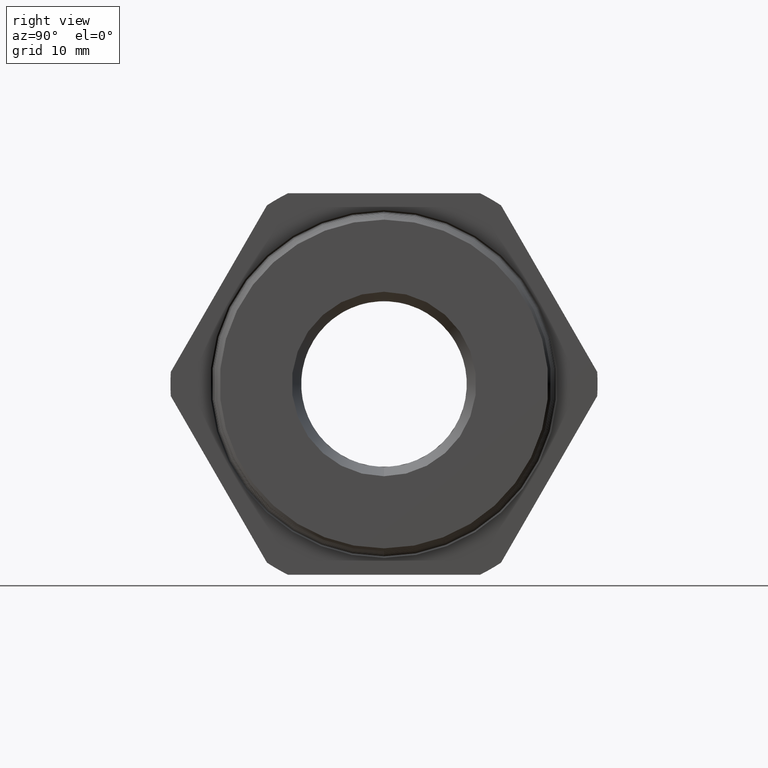
[diagram: clean part render]
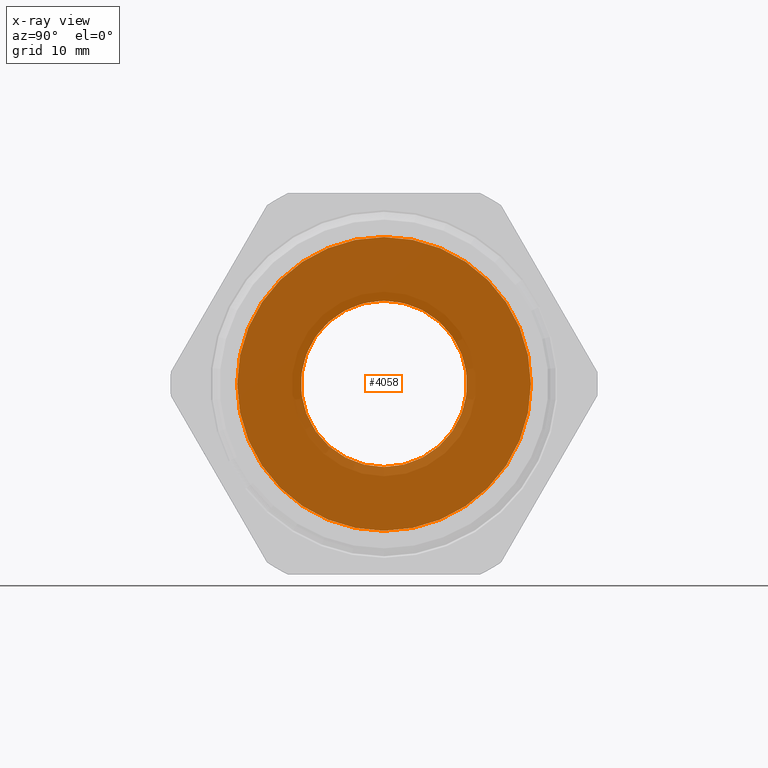
[diagram: x-ray — body ghosted, one internal face saturated and labeled with its STEP entity id]
A machine part, right view, then the same camera in x-ray: the body is ghosted and one INTERNAL B-rep face — a face not visible from any outside direction — is saturated and labeled: STEP entity #4058.
In plain terms, the highlighted planar face has unit normal (1, 0, 0).
Its self-contained STEP definition (entity closure, byte-faithful):
#327 = VERTEX_POINT ( 'NONE', #1703 ) ;
#333 = VERTEX_POINT ( 'NONE', #1758 ) ;
#335 = EDGE_CURVE ( 'NONE', #333, #327, #1757, .T. ) ;
#869 = VERTEX_POINT ( 'NONE', #2783 ) ;
#870 = VERTEX_POINT ( 'NONE', #2782 ) ;
#872 = EDGE_CURVE ( 'NONE', #870, #869, #2781, .T. ) ;
#1703 = CARTESIAN_POINT ( 'NONE',  ( -1.106250000000000200, 0.0000000000000000000, 0.3950000000000000200 ) ) ;
#1753 = DIRECTION ( 'NONE',  ( 0.0000000000000000000, 0.0000000000000000000, 1.000000000000000000 ) ) ;
#1754 = DIRECTION ( 'NONE',  ( -1.000000000000000000, 0.0000000000000000000, 0.0000000000000000000 ) ) ;
#1755 = CARTESIAN_POINT ( 'NONE',  ( -1.106250000000000200, 0.0000000000000000000, 0.0000000000000000000 ) ) ;
#1756 = AXIS2_PLACEMENT_3D ( 'NONE', #1755, #1754, #1753 ) ;
#1757 = CIRCLE ( 'NONE', #1756, 0.3950000000000000200 ) ;
#1758 = CARTESIAN_POINT ( 'NONE',  ( -1.106250000000000200, 4.837354856632045600E-017, -0.3950000000000000200 ) ) ;
#2777 = DIRECTION ( 'NONE',  ( 0.0000000000000000000, 0.0000000000000000000, 1.000000000000000000 ) ) ;
#2778 = DIRECTION ( 'NONE',  ( -1.000000000000000000, 0.0000000000000000000, 0.0000000000000000000 ) ) ;
#2779 = CARTESIAN_POINT ( 'NONE',  ( -1.106250000000000200, 0.0000000000000000000, 0.0000000000000000000 ) ) ;
#2780 = AXIS2_PLACEMENT_3D ( 'NONE', #2779, #2778, #2777 ) ;
#2781 = CIRCLE ( 'NONE', #2780, 0.6969999999999999500 ) ;
#2782 = CARTESIAN_POINT ( 'NONE',  ( -1.106250000000000200, 8.535788190057050200E-017, -0.6969999999999999500 ) ) ;
#2783 = CARTESIAN_POINT ( 'NONE',  ( -1.106250000000000200, 0.0000000000000000000, 0.6969999999999999500 ) ) ;
#3525 = DIRECTION ( 'NONE',  ( 0.0000000000000000000, 0.0000000000000000000, -1.000000000000000000 ) ) ;
#3526 = DIRECTION ( 'NONE',  ( 1.000000000000000000, 0.0000000000000000000, 0.0000000000000000000 ) ) ;
#3527 = CARTESIAN_POINT ( 'NONE',  ( -1.106250000000000200, 0.6969999999999999500, 0.0000000000000000000 ) ) ;
#3528 = AXIS2_PLACEMENT_3D ( 'NONE', #3527, #3526, #3525 ) ;
#3529 = PLANE ( 'NONE',  #3528 ) ;
#3530 = FACE_OUTER_BOUND ( 'NONE', #4036, .T. ) ;
#3531 = FACE_BOUND ( 'NONE', #4053, .T. ) ;
#3532 = DIRECTION ( 'NONE',  ( 0.0000000000000000000, 0.0000000000000000000, 1.000000000000000000 ) ) ;
#3533 = DIRECTION ( 'NONE',  ( -1.000000000000000000, 0.0000000000000000000, 0.0000000000000000000 ) ) ;
#3534 = CARTESIAN_POINT ( 'NONE',  ( -1.106250000000000200, 0.0000000000000000000, 0.0000000000000000000 ) ) ;
#3535 = AXIS2_PLACEMENT_3D ( 'NONE', #3534, #3533, #3532 ) ;
#3536 = CIRCLE ( 'NONE', #3535, 0.3950000000000000200 ) ;
#3597 = DIRECTION ( 'NONE',  ( 0.0000000000000000000, 0.0000000000000000000, 1.000000000000000000 ) ) ;
#3598 = DIRECTION ( 'NONE',  ( -1.000000000000000000, 0.0000000000000000000, 0.0000000000000000000 ) ) ;
#3599 = CARTESIAN_POINT ( 'NONE',  ( -1.106250000000000200, 0.0000000000000000000, 0.0000000000000000000 ) ) ;
#3600 = AXIS2_PLACEMENT_3D ( 'NONE', #3599, #3598, #3597 ) ;
#3601 = CIRCLE ( 'NONE', #3600, 0.6969999999999999500 ) ;
#4036 = EDGE_LOOP ( 'NONE', ( #4038, #4078 ) ) ;
#4038 = ORIENTED_EDGE ( 'NONE', *, *, #4084, .T. ) ;
#4053 = EDGE_LOOP ( 'NONE', ( #4054, #4057 ) ) ;
#4054 = ORIENTED_EDGE ( 'NONE', *, *, #4056, .F. ) ;
#4056 = EDGE_CURVE ( 'NONE', #327, #333, #3536, .T. ) ;
#4057 = ORIENTED_EDGE ( 'NONE', *, *, #335, .F. ) ;
#4058 = ADVANCED_FACE ( 'NONE', ( #3531, #3530 ), #3529, .F. ) ;
#4078 = ORIENTED_EDGE ( 'NONE', *, *, #872, .T. ) ;
#4084 = EDGE_CURVE ( 'NONE', #869, #870, #3601, .T. ) ;